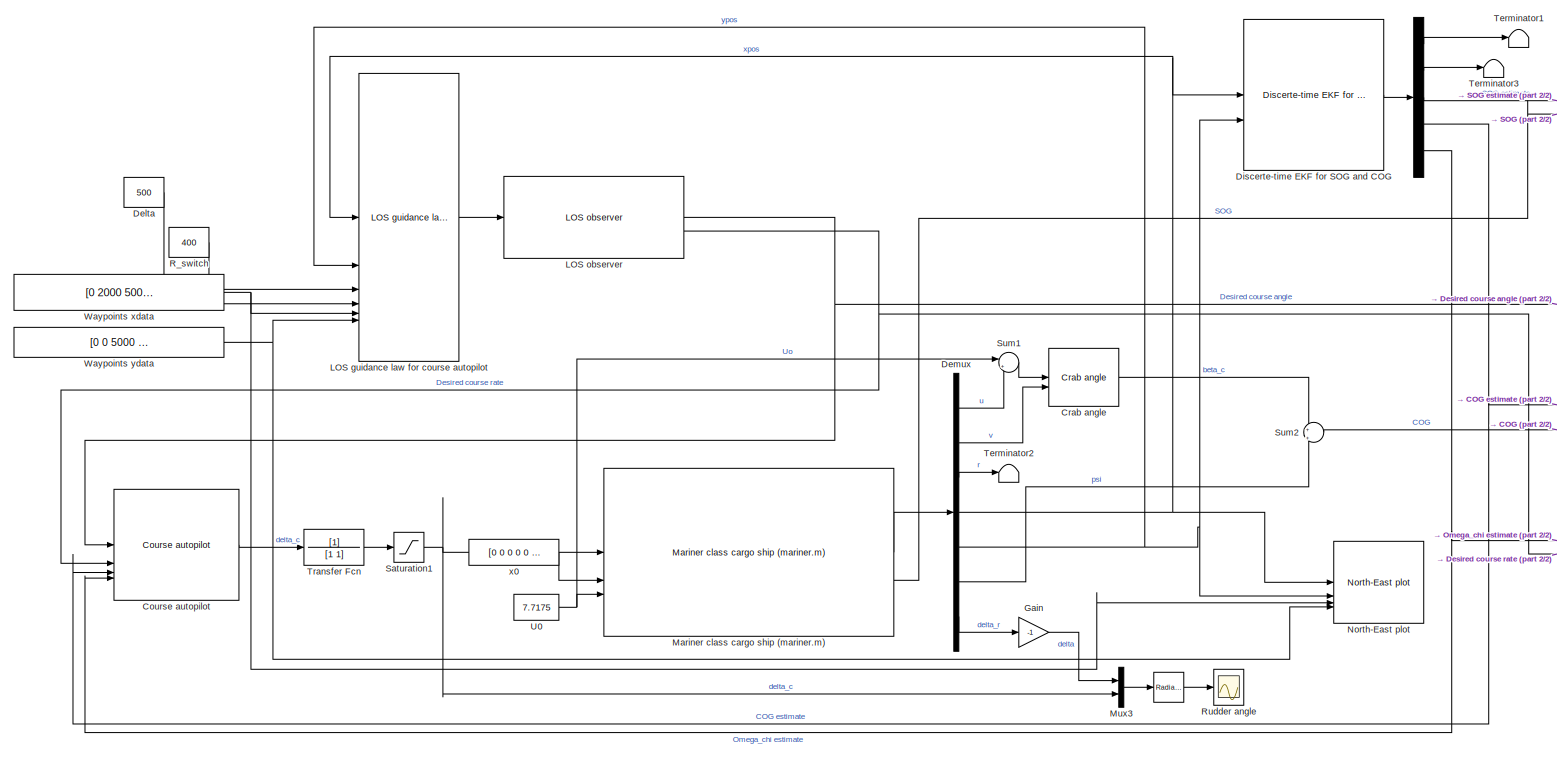
[diagram: root canvas - part 1/2, most of the canvas]
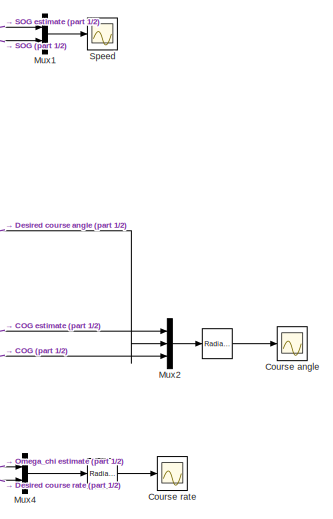
[diagram: root canvas - part 2/2, middle right region]
MODEL slx_1f2b6b0fb791
KIND model
CONFIG AbsTol = auto
CONFIG EnableMultiTasking = on
CONFIG FixedStep = 0.05
CONFIG MaxStep = auto
CONFIG MinStep = auto
CONFIG RelTol = 1e-3
CONFIG SampleTimeConstraint = Unconstrained
CONFIG SolverName = ode4
CONFIG StartTime = 0.0
CONFIG StopTime = 3000
WORKSPACE source: mxarray member
WORKSPACE h_samp = 0.5
BLOCK [Reference]     REF=simulink_extras/Transformations/Radians
to Degrees
  SourceBlock = simulink_extras/Transformations/Radians\nto Degrees
  SourceType = RadiansToDegrees
BLOCK [Reference]         REF=simulink_extras/Transformations/Radians
to Degrees
  SourceBlock = simulink_extras/Transformations/Radians\nto Degrees
  SourceType = RadiansToDegrees
BLOCK [Reference]              REF=simulink_extras/Transformations/Radians
to Degrees
  SourceBlock = simulink_extras/Transformations/Radians\nto Degrees
  SourceType = RadiansToDegrees
BLOCK [Demux]             
  Outputs = 5
BLOCK [Scope] Course angle
  Floating = off
  NumInputPorts = 1
  ScopeSpecificationString = Simulink.scopes.TimeScopeBlockCfg('CurrentConfiguration', extmgr.ConfigurationSet(extmgr.Configuration('Core','General UI',true),extmgr.Configuration('Core','Source UI',true),extmgr.Configuration('Sources','WiredSimulink',true,'DataLoggingVariableName','ScopeData1','DataLoggingSaveFormat','StructureWithTime','DataLoggingDecimation','10','DataLoggingDecimateData',true),extmgr.Configuration('Visuals...<+1944ch>
BLOCK [Reference] Course autopilot   REF=mssSimulink/Control/Autopilots/Course autopilot 
  SourceBlock = mssSimulink/Control/Autopilots/Course autopilot
  SourceType = Course Autopilot
BLOCK [Scope] Course rate 
  Floating = off
  NumInputPorts = 1
  ScopeSpecificationString = Simulink.scopes.TimeScopeBlockCfg('CurrentConfiguration', extmgr.ConfigurationSet(extmgr.Configuration('Core','General UI',true),extmgr.Configuration('Core','Source UI',true),extmgr.Configuration('Sources','WiredSimulink',true,'DataLoggingVariableName','ScopeData3','DataLoggingSaveFormat','StructureWithTime','DataLoggingDecimation','10','DataLoggingDecimateData',true),extmgr.Configuration('Visuals...<+1907ch>
BLOCK [Reference] Crab angle  REF=mssSimulink/Modelling/Kinematics/Crab angle
  SourceBlock = mssSimulink/Modelling/Kinematics/Crab angle
  SourceType = SubSystem
BLOCK [Constant] Delta
  Value = 500
BLOCK [Demux] Demux
  Outputs = 7
BLOCK [Reference] Discerte-time EKF for SOG and COG  REF=mssSimulink/Navigation/Estimators/Discerte-time EKF for SOG and COG
  SourceBlock = mssSimulink/Navigation/Estimators/Discerte-time EKF for SOG and COG
BLOCK [Gain] Gain
  Gain = -1
BLOCK [Reference] LOS guidance law for course autopilot  REF=mssSimulink/Guidance/LOS guidance law for course autopilot
  SourceBlock = mssSimulink/Guidance/LOS guidance law for course autopilot
  SourceType = SubSystem
BLOCK [Reference] LOS observer  REF=mssSimulink/Guidance/LOS observer
  SourceBlock = mssSimulink/Guidance/LOS observer
  SourceType = LOS observer
BLOCK [Reference] Mariner class cargo ship (mariner.m)  REF=mssSimulink/Marine craft models/Mariner class cargo ship (mariner.m)
  SourceBlock = mssSimulink/Marine craft models/Mariner class cargo ship (mariner.m)
BLOCK [Mux] Mux1
  DisplayOption = bar
  Inputs = 2
BLOCK [Mux] Mux2
  DisplayOption = bar
  Inputs = 3
BLOCK [Mux] Mux3
  DisplayOption = bar
  Inputs = 2
BLOCK [Mux] Mux4
  DisplayOption = bar
  Inputs = 2
BLOCK [Reference] North-East plot  REF=mssSimulink/Utilities/Visualization/North-East plot
  SourceBlock = mssSimulink/Utilities/Visualization/North-East plot
BLOCK [Constant] R_switch
  Value = 400
BLOCK [Scope] Rudder angle
  Floating = off
  NumInputPorts = 1
  ScopeSpecificationString = Simulink.scopes.TimeScopeBlockCfg('CurrentConfiguration', extmgr.ConfigurationSet(extmgr.Configuration('Core','General UI',true),extmgr.Configuration('Core','Source UI',true),extmgr.Configuration('Sources','WiredSimulink',true,'DataLoggingVariableName','ScopeData1','DataLoggingSaveFormat','StructureWithTime','DataLoggingDecimation','10','DataLoggingDecimateData',true),extmgr.Configuration('Visuals...<+2083ch>
BLOCK [Saturate] Saturation1
  LowerLimit = -40*pi/180
  UpperLimit = 40*pi/180
BLOCK [Scope] Speed
  Floating = off
  NumInputPorts = 1
  ScopeSpecificationString = Simulink.scopes.TimeScopeBlockCfg('CurrentConfiguration', extmgr.ConfigurationSet(extmgr.Configuration('Core','General UI',true),extmgr.Configuration('Core','Source UI',true),extmgr.Configuration('Sources','WiredSimulink',true,'DataLoggingVariableName','ScopeData4','DataLoggingSaveFormat','StructureWithTime','DataLoggingDecimation','10','DataLoggingDecimateData',true),extmgr.Configuration('Visuals...<+2003ch>
BLOCK [Sum] Sum1
  Inputs = |++
BLOCK [Sum] Sum2
  Inputs = +|+
BLOCK [Terminator] Terminator1
BLOCK [Terminator] Terminator2
BLOCK [Terminator] Terminator3
BLOCK [TransferFcn] Transfer Fcn
  Denominator = [1 1]
BLOCK [Constant] U0
  Value = 7.7175
BLOCK [Constant] Waypoints xdata
  Value = [0 2000 5000 3000 6000 10000]'
BLOCK [Constant] Waypoints ydata
  Value = [0 0 5000  8000 12000 12000]'
BLOCK [Constant] x0
  Value = [0 0 0 0 0 0 0]'
LINE             :1 -> Terminator1:1
LINE             :2 -> Terminator3:1
LINE             :3 -> Mux1:1
NET             :4 -> Course autopilot :3, Mux2:1
NET             :5 -> Course autopilot :4, Mux4:1
LINE            :1 -> Course angle:1
LINE       :1 -> Rudder angle:1
LINE   :1 -> Course rate :1
LINE Course autopilot :1 -> Transfer Fcn:1
LINE Crab angle:1 -> Sum2:1
LINE Delta:1 -> LOS guidance law for course autopilot:3
LINE Demux:1 -> Sum1:2
LINE Demux:2 -> Crab angle:2
LINE Demux:3 -> Terminator2:1
NET Demux:4 -> Discerte-time EKF for SOG and COG:1, LOS guidance law for course autopilot:1, North-East plot:1
NET Demux:5 -> Discerte-time EKF for SOG and COG:2, LOS guidance law for course autopilot:2, North-East plot:2
LINE Demux:6 -> Sum2:2
LINE Demux:7 -> Gain:1
LINE Discerte-time EKF for SOG and COG:1 ->             :1
LINE Gain:1 -> Mux3:1
LINE LOS guidance law for course autopilot:1 -> LOS observer:1
NET LOS observer:1 -> Course autopilot :1, Mux2:2
NET LOS observer:2 -> Course autopilot :2, Mux4:2
LINE Mariner class cargo ship (mariner.m):1 -> Demux:1
LINE Mariner class cargo ship (mariner.m):2 -> Mux1:2
LINE Mux1:1 -> Speed:1
LINE Mux2:1 ->            :1
LINE Mux3:1 ->       :1
LINE Mux4:1 ->   :1
LINE R_switch:1 -> LOS guidance law for course autopilot:4
NET Saturation1:1 -> Mariner class cargo ship (mariner.m):1, Mux3:2
LINE Sum1:1 -> Crab angle:1
LINE Sum2:1 -> Mux2:3
LINE Transfer Fcn:1 -> Saturation1:1
NET U0:1 -> Mariner class cargo ship (mariner.m):3, Sum1:1
NET Waypoints xdata:1 -> LOS guidance law for course autopilot:5, North-East plot:3
NET Waypoints ydata:1 -> LOS guidance law for course autopilot:6, North-East plot:4
LINE x0:1 -> Mariner class cargo ship (mariner.m):2
note: NET lines group one-source signal fan-out (src -> all destinations, sorted); 1:1 wires keep LINE
